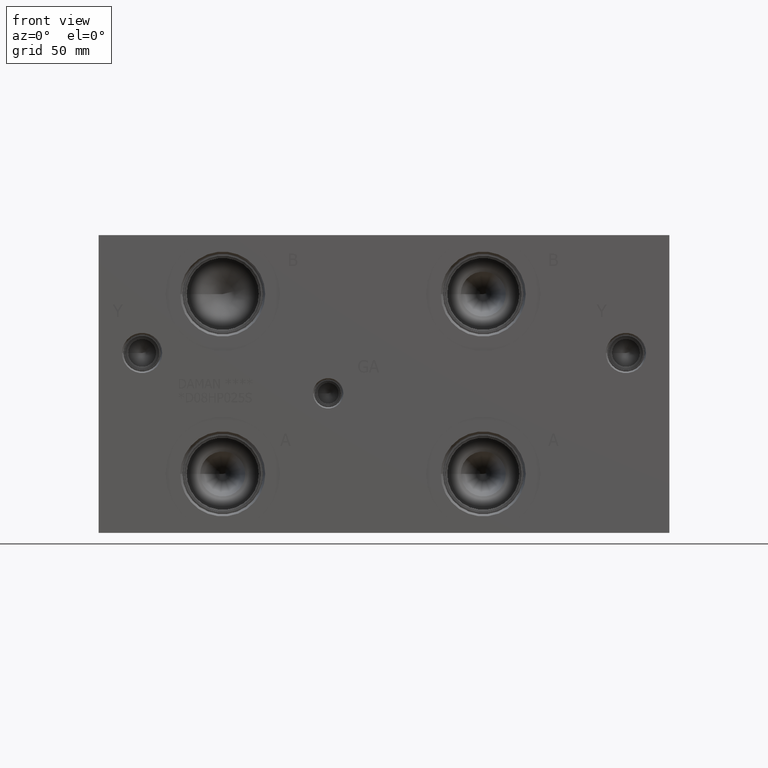
[diagram: clean part render]
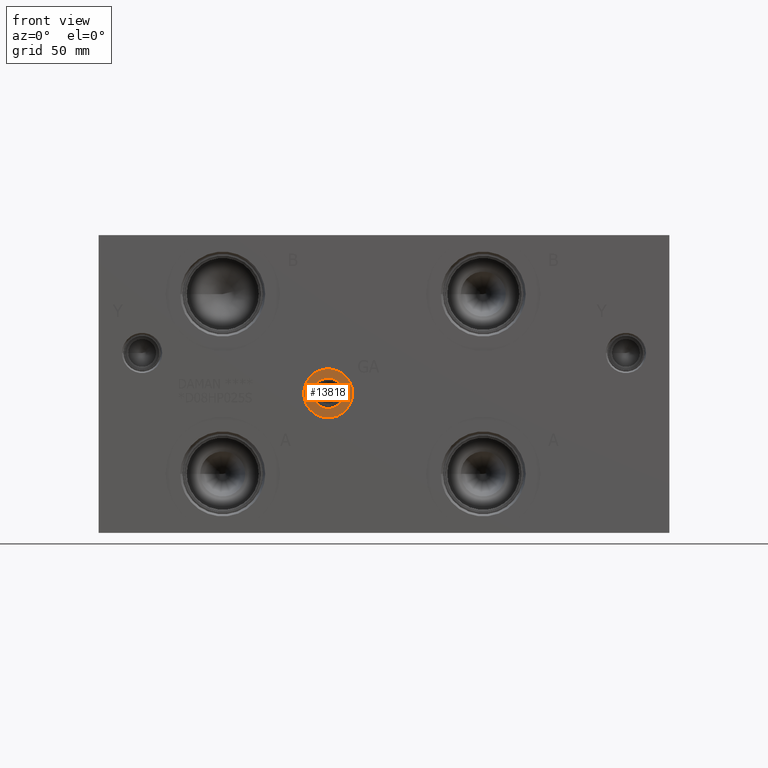
[diagram: same view with one face highlighted and labeled with its STEP entity id]
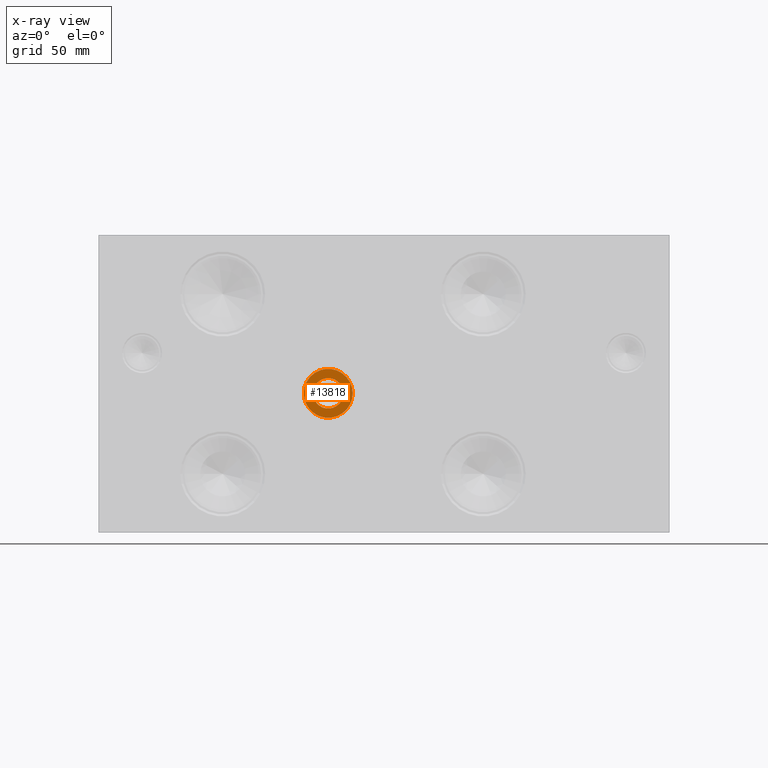
[diagram: x-ray of the same camera — body ghosted, the highlighted face saturated]
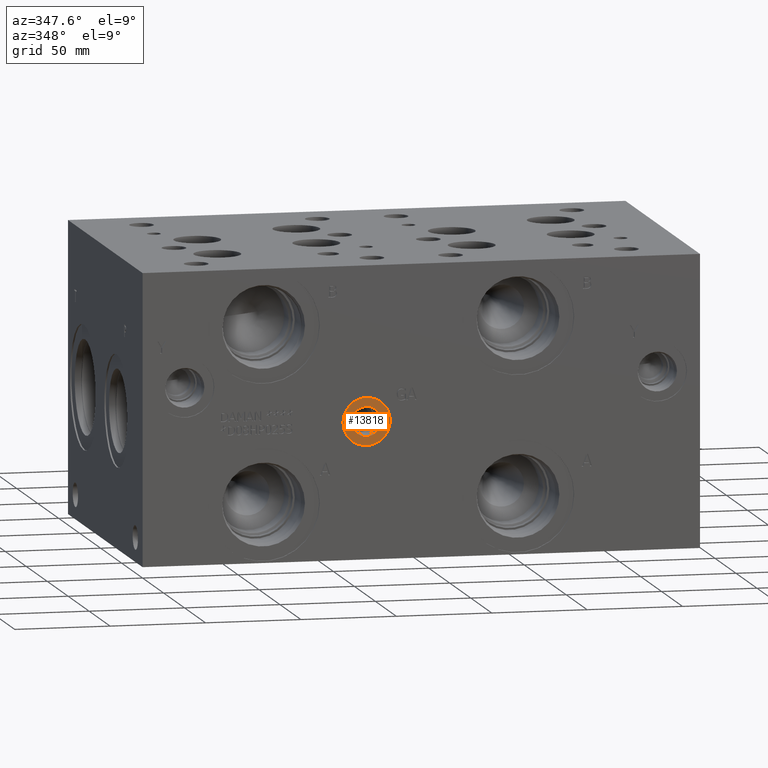
[diagram: same view with one face highlighted and labeled with its STEP entity id]
A machine part, front view. The second image highlights one B-rep face of the part: STEP entity #13818.
The next image is the same camera in x-ray: the body ghosted, the highlighted face saturated — about 0% of this face is hidden behind the body in this view.
A second angle (auxiliary view) of the same face is appended — the face is thin or edge-on in the first view.
In plain terms, the highlighted planar face has unit normal (0, 1, 0).
Its self-contained STEP definition (entity closure, byte-faithful):
#228=CIRCLE('',#14435,12.5095);
#229=CIRCLE('',#14436,12.5095);
#230=CIRCLE('',#14438,7.79780000000001);
#231=CIRCLE('',#14439,7.79780000000001);
#1121=FACE_BOUND('',#2496,.T.);
#1701=FACE_OUTER_BOUND('',#2495,.T.);
#2495=EDGE_LOOP('',(#11355,#11356));
#2496=EDGE_LOOP('',(#11357,#11358));
#6220=VERTEX_POINT('',#23164);
#6221=VERTEX_POINT('',#23166);
#6222=VERTEX_POINT('',#23170);
#6223=VERTEX_POINT('',#23171);
#8031=EDGE_CURVE('',#6220,#6221,#228,.T.);
#8032=EDGE_CURVE('',#6221,#6220,#229,.T.);
#8033=EDGE_CURVE('',#6222,#6223,#230,.T.);
#8034=EDGE_CURVE('',#6223,#6222,#231,.T.);
#11355=ORIENTED_EDGE('',*,*,#8032,.F.);
#11356=ORIENTED_EDGE('',*,*,#8031,.F.);
#11357=ORIENTED_EDGE('',*,*,#8033,.T.);
#11358=ORIENTED_EDGE('',*,*,#8034,.T.);
#12765=PLANE('',#14437);
#13818=ADVANCED_FACE('',(#1701,#1121),#12765,.F.);
#14435=AXIS2_PLACEMENT_3D('',#23167,#16833,#16834);
#14436=AXIS2_PLACEMENT_3D('',#23168,#16835,#16836);
#14437=AXIS2_PLACEMENT_3D('',#23169,#16837,#16838);
#14438=AXIS2_PLACEMENT_3D('',#23172,#16839,#16840);
#14439=AXIS2_PLACEMENT_3D('',#23173,#16841,#16842);
#16833=DIRECTION('center_axis',(0.,1.,0.));
#16834=DIRECTION('ref_axis',(1.,0.,0.));
#16835=DIRECTION('center_axis',(0.,1.,0.));
#16836=DIRECTION('ref_axis',(1.,0.,0.));
#16837=DIRECTION('center_axis',(0.,1.,0.));
#16838=DIRECTION('ref_axis',(0.,0.,1.));
#16839=DIRECTION('center_axis',(0.,1.,0.));
#16840=DIRECTION('ref_axis',(1.,0.,0.));
#16841=DIRECTION('center_axis',(0.,1.,0.));
#16842=DIRECTION('ref_axis',(1.,0.,0.));
#23164=CARTESIAN_POINT('',(104.9655,0.7874,71.4248));
#23166=CARTESIAN_POINT('',(129.9845,0.7874,71.4248));
#23167=CARTESIAN_POINT('Origin',(117.475,0.7874,71.4248));
#23168=CARTESIAN_POINT('Origin',(117.475,0.7874,71.4248));
#23169=CARTESIAN_POINT('Origin',(125.2728,0.7874,71.4248));
#23170=CARTESIAN_POINT('',(125.2728,0.7874,71.4248));
#23171=CARTESIAN_POINT('',(109.6772,0.787400000000002,71.4248));
#23172=CARTESIAN_POINT('Origin',(117.475,0.7874,71.4248));
#23173=CARTESIAN_POINT('Origin',(117.475,0.7874,71.4248));